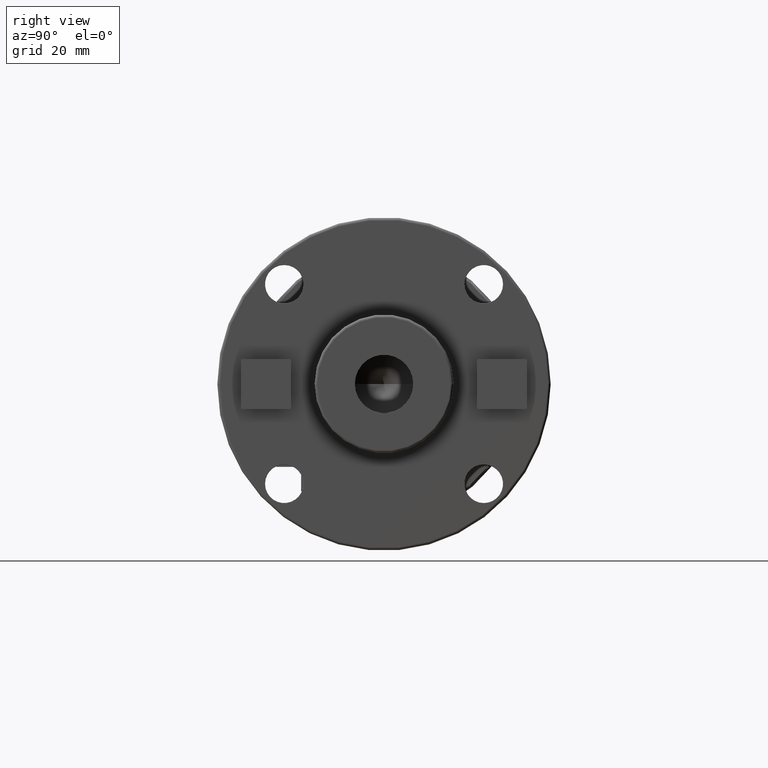
[diagram: clean part render]
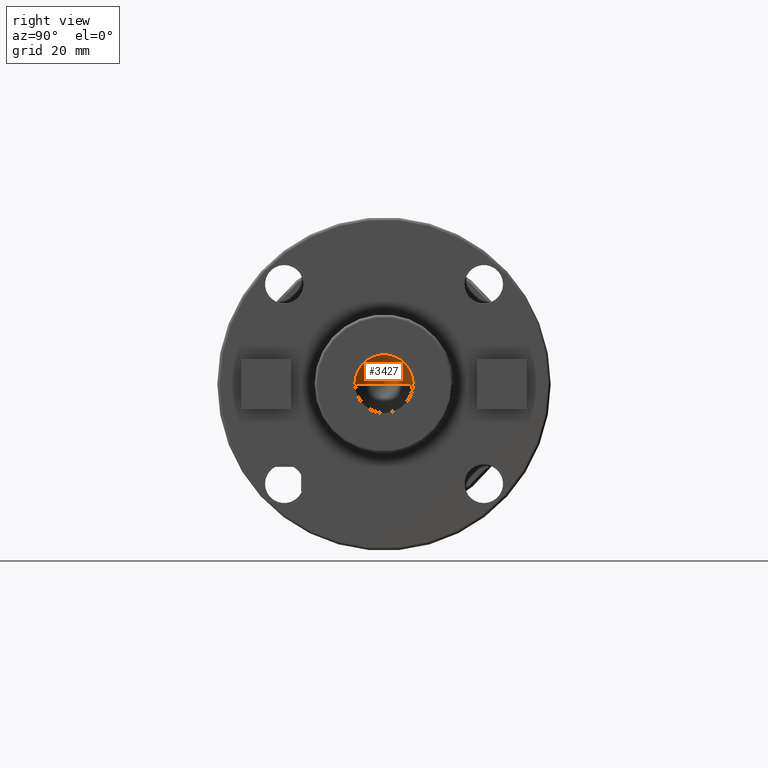
[diagram: same view with one face highlighted and labeled with its STEP entity id]
A machine part, right view. The second image highlights one B-rep face of the part: STEP entity #3427.
In plain terms, the highlighted conical surface has half-angle 59 deg.
Its self-contained STEP definition (entity closure, byte-faithful):
#1348=CARTESIAN_POINT('',(4.5E1,0.E0,0.E0));
#1349=DIRECTION('',(-1.E0,0.E0,0.E0));
#1350=DIRECTION('',(0.E0,-1.E0,0.E0));
#1351=AXIS2_PLACEMENT_3D('',#1348,#1349,#1350);
#1357=DIRECTION('',(5.150380749101E-1,-8.571673007021E-1,0.E0));
#1358=VECTOR('',#1357,1.224965067076E1);
#1359=CARTESIAN_POINT('',(3.869096350021E1,0.E0,0.E0));
#1360=LINE('',#1359,#1358);
#1361=DIRECTION('',(5.150380749101E-1,8.571673007021E-1,0.E0));
#1362=VECTOR('',#1361,1.224965067076E1);
#1363=CARTESIAN_POINT('',(3.869096350021E1,0.E0,0.E0));
#1364=LINE('',#1363,#1362);
#1954=CARTESIAN_POINT('',(3.869096350021E1,0.E0,0.E0));
#1955=CARTESIAN_POINT('',(4.5E1,-1.05E1,0.E0));
#1956=VERTEX_POINT('',#1954);
#1957=VERTEX_POINT('',#1955);
#1958=CARTESIAN_POINT('',(4.5E1,1.05E1,0.E0));
#1959=VERTEX_POINT('',#1958);
#3415=CARTESIAN_POINT('',(4.184548175011E1,0.E0,0.E0));
#3416=DIRECTION('',(1.E0,0.E0,0.E0));
#3417=DIRECTION('',(0.E0,-1.E0,0.E0));
#3418=AXIS2_PLACEMENT_3D('',#3415,#3416,#3417);
#3419=CONICAL_SURFACE('',#3418,5.25E0,5.9E1);
#3421=ORIENTED_EDGE('',*,*,#3420,.T.);
#3422=ORIENTED_EDGE('',*,*,#3409,.T.);
#3424=ORIENTED_EDGE('',*,*,#3423,.F.);
#3425=EDGE_LOOP('',(#3421,#3422,#3424));
#3426=FACE_OUTER_BOUND('',#3425,.F.);
#3427=ADVANCED_FACE('',(#3426),#3419,.F.);
#1352=CIRCLE('',#1351,1.05E1);
#3409=EDGE_CURVE('',#1957,#1959,#1352,.T.);
#3420=EDGE_CURVE('',#1956,#1957,#1360,.T.);
#3423=EDGE_CURVE('',#1956,#1959,#1364,.T.);